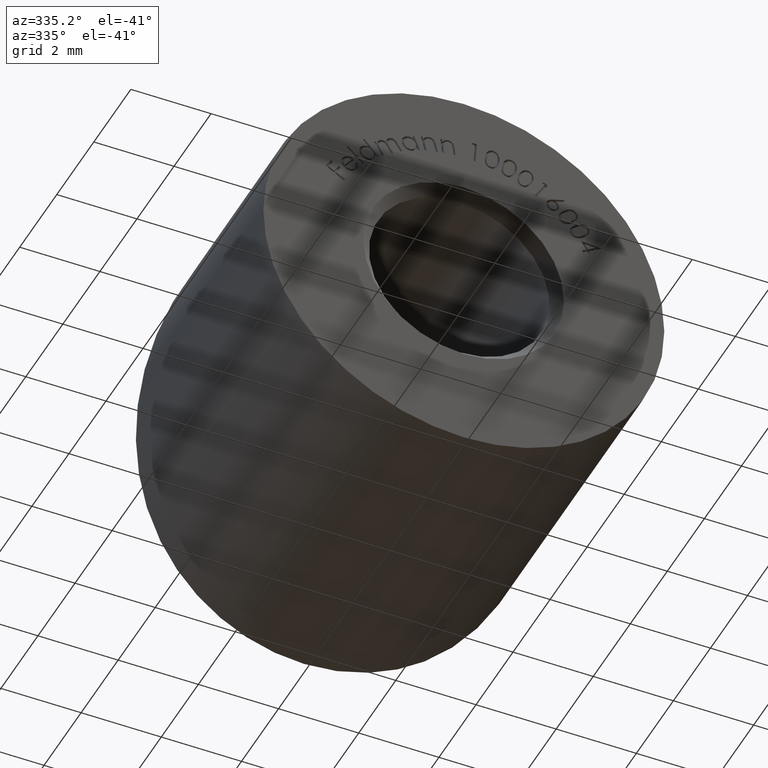
[diagram: clean part render]
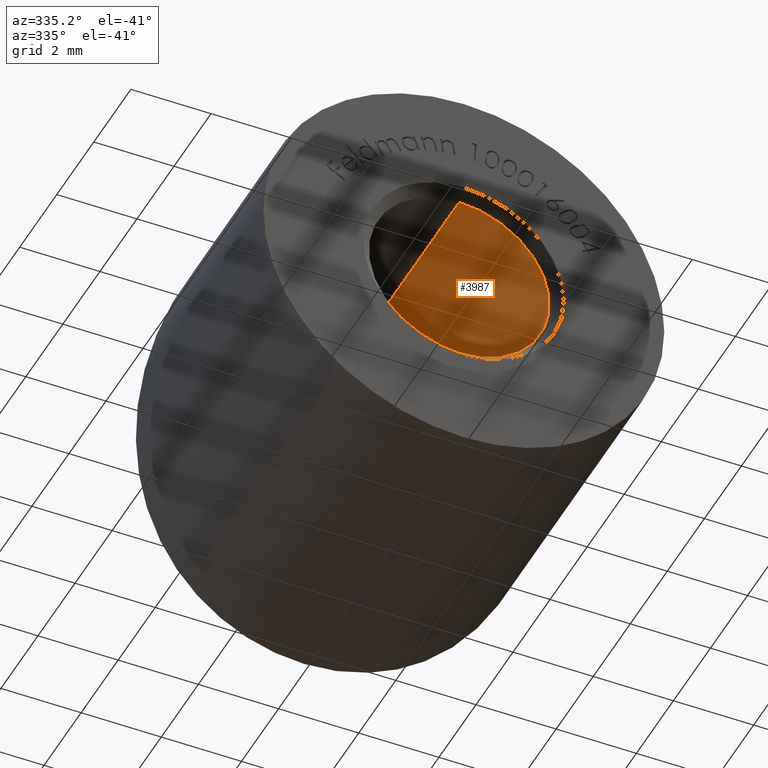
[diagram: same view with one face highlighted and labeled with its STEP entity id]
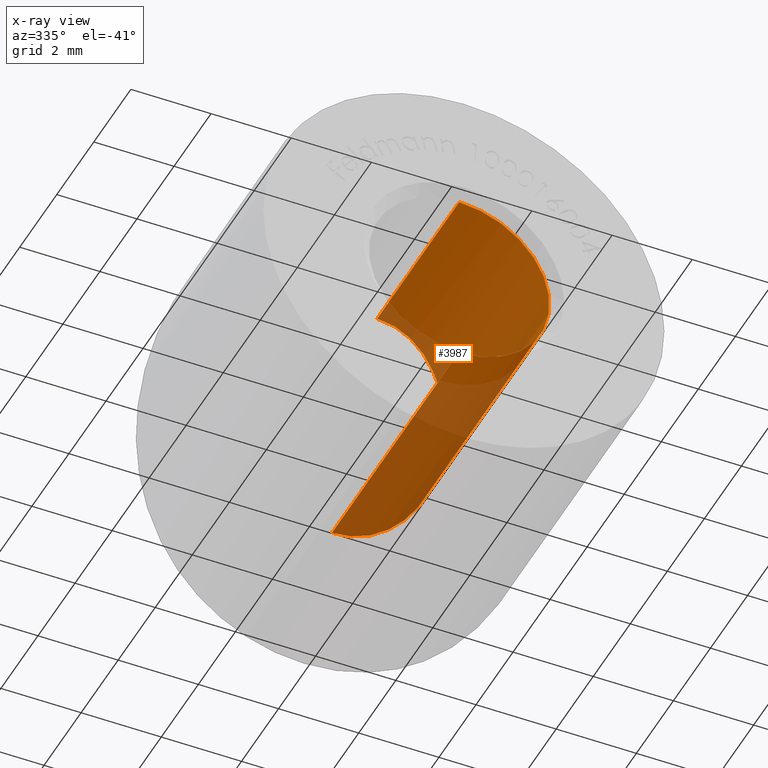
[diagram: x-ray of the same camera — body ghosted, the highlighted face saturated]
A machine part, auxiliary view. The second image highlights one B-rep face of the part: STEP entity #3987.
The next image is the same camera in x-ray: the body ghosted, the highlighted face saturated — about 39% of this face is hidden behind the body in this view.
In plain terms, the highlighted cylindrical surface (partial cylindrical patch) has radius 2.25 mm, axis along (-0, -1, -0).
Its self-contained STEP definition (entity closure, byte-faithful):
#43 = CARTESIAN_POINT ( 'NONE',  ( 1.530730786723420800, 5.063914313705950600, 1.655352444410929100 ) ) ;
#54 = VERTEX_POINT ( 'NONE', #4342 ) ;
#898 = ORIENTED_EDGE ( 'NONE', *, *, #6573, .F. ) ;
#1083 = VECTOR ( 'NONE', #10592, 1000.000000000000000 ) ;
#1145 = CARTESIAN_POINT ( 'NONE',  ( 1.451663471243327600, 6.902826626032707600, -1.744731473559303400 ) ) ;
#1392 = VERTEX_POINT ( 'NONE', #1548 ) ;
#1548 = CARTESIAN_POINT ( 'NONE',  ( 2.755400090286027300E-016, 4.678349675813525000, 2.250000000000000000 ) ) ;
#1598 = VERTEX_POINT ( 'NONE', #5825 ) ;
#1703 = CARTESIAN_POINT ( 'NONE',  ( 0.0000000000000000000, 9.048178118933464000, 0.0000000000000000000 ) ) ;
#1798 = CARTESIAN_POINT ( 'NONE',  ( 0.0000000000000000000, 7.121650324186497000, -2.250000000000000000 ) ) ;
#2014 = CARTESIAN_POINT ( 'NONE',  ( 2.755455298081544300E-016, 9.048178118933464000, 2.250000000000000000 ) ) ;
#2035 = CARTESIAN_POINT ( 'NONE',  ( 2.242001565224755600, 6.163096895265291600, -0.2354402480858955900 ) ) ;
#2172 = CARTESIAN_POINT ( 'NONE',  ( 2.252234718324983100, 6.089109051784075400, -0.09685890814524249200 ) ) ;
#2371 = AXIS2_PLACEMENT_3D ( 'NONE', #1703, #5767, #4623 ) ;
#2430 = EDGE_CURVE ( 'NONE', #1598, #54, #11116, .T. ) ;
#2536 = DIRECTION ( 'NONE',  ( 0.0000000000000000000, 0.0000000000000000000, 1.000000000000000000 ) ) ;
#2617 = VECTOR ( 'NONE', #12446, 1000.000000000000000 ) ;
#3124 = CARTESIAN_POINT ( 'NONE',  ( 1.754928917688501000, 6.751323018545523500, -1.415963693391651300 ) ) ;
#3374 = EDGE_CURVE ( 'NONE', #12751, #1598, #8231, .T. ) ;
#3801 = CARTESIAN_POINT ( 'NONE',  ( 0.0000000000000000000, 7.121650324186497000, -2.250000000000000000 ) ) ;
#3987 = ADVANCED_FACE ( 'NONE', ( #7760 ), #4744, .F. ) ;
#4059 = CARTESIAN_POINT ( 'NONE',  ( 0.3155859234384074700, 7.114603805913512600, -2.233260152988592900 ) ) ;
#4102 = CARTESIAN_POINT ( 'NONE',  ( 0.6220479522852695500, 7.086868629149894800, -2.167971801259602800 ) ) ;
#4146 = CARTESIAN_POINT ( 'NONE',  ( 1.829144983235277700, 5.260425982982458700, 1.341656609144043600 ) ) ;
#4195 = CARTESIAN_POINT ( 'NONE',  ( 1.996906518866765200, 6.575552304438658300, -1.046961950532518100 ) ) ;
#4342 = CARTESIAN_POINT ( 'NONE',  ( 2.755455298081544300E-016, 0.2499999999999950000, 2.250000000000000000 ) ) ;
#4623 = DIRECTION ( 'NONE',  ( 0.0000000000000000000, 0.0000000000000000000, -1.000000000000000000 ) ) ;
#4744 = CYLINDRICAL_SURFACE ( 'NONE', #2371, 2.250000000000000000 ) ;
#5128 = CARTESIAN_POINT ( 'NONE',  ( 2.755400090286027300E-016, 4.678349675813525000, 2.250000000000000000 ) ) ;
#5767 = DIRECTION ( 'NONE',  ( -0.0000000000000000000, -1.000000000000000000, -0.0000000000000000000 ) ) ;
#5825 = CARTESIAN_POINT ( 'NONE',  ( 0.0000000000000000000, 0.2499999999999950000, -2.250000000000000000 ) ) ;
#5863 = B_SPLINE_CURVE_WITH_KNOTS ( 'NONE', 3,
 ( #3801, #13000, #4059, #4102, #7222, #9237, #1145, #3124, #8116, #4195, #12370, #8246, #6250, #2035, #2172, #12228, #13200, #7092, #4146, #43, #8157, #9193, #11162, #7273, #11248, #8296, #11296, #5128 ),
 .UNSPECIFIED., .F., .F.,
 ( 4, 2, 2, 2, 2, 2, 2, 2, 2, 2, 2, 2, 2, 4 ),
 ( 0.0000000000000000000, 0.0004711000582644451500, 0.0009422001165288903000, 0.001884400233057781500, 0.002355500291322227100, 0.002826600349586672800, 0.003297700407851118500, 0.003768800466115564600, 0.004711000582644454300, 0.005653200699173344800, 0.006124300757437790500, 0.006595400815702235300, 0.007066500873966680100, 0.007537600932231125800 ),
 .UNSPECIFIED. ) ;
#6250 = CARTESIAN_POINT ( 'NONE',  ( 2.195678798304772500, 6.307100890617409300, -0.5108793825981936500 ) ) ;
#6573 = EDGE_CURVE ( 'NONE', #12751, #1392, #5863, .T. ) ;
#7092 = CARTESIAN_POINT ( 'NONE',  ( 1.978757368600619500, 5.404122975890368600, 1.106694589313736500 ) ) ;
#7205 = AXIS2_PLACEMENT_3D ( 'NONE', #8634, #10571, #2536 ) ;
#7222 = CARTESIAN_POINT ( 'NONE',  ( 0.7735842560346954900, 7.065784624632603300, -2.118512831846604900 ) ) ;
#7273 = CARTESIAN_POINT ( 'NONE',  ( 0.7677537430946986800, 4.763976297962370800, 2.120471403295018000 ) ) ;
#7760 = FACE_OUTER_BOUND ( 'NONE', #7883, .T. ) ;
#7883 = EDGE_LOOP ( 'NONE', ( #11230, #898, #9859, #8308 ) ) ;
#8116 = CARTESIAN_POINT ( 'NONE',  ( 1.845058726310910600, 6.695028230409265600, -1.295964223047611800 ) ) ;
#8157 = CARTESIAN_POINT ( 'NONE',  ( 1.420051834103958100, 5.002817761865566500, 1.751470823753793700 ) ) ;
#8218 = EDGE_CURVE ( 'NONE', #1392, #54, #9643, .T. ) ;
#8231 = LINE ( 'NONE', #11574, #1083 ) ;
#8246 = CARTESIAN_POINT ( 'NONE',  ( 2.159188592558108200, 6.377638178930412800, -0.6487870193724797300 ) ) ;
#8296 = CARTESIAN_POINT ( 'NONE',  ( 0.3172753161369369900, 4.689682549578868100, 2.232955936073446800 ) ) ;
#8308 = ORIENTED_EDGE ( 'NONE', *, *, #2430, .T. ) ;
#8634 = CARTESIAN_POINT ( 'NONE',  ( 0.0000000000000000000, 0.2499999999999950000, 0.0000000000000000000 ) ) ;
#9193 = CARTESIAN_POINT ( 'NONE',  ( 1.179584366087567300, 4.893604216598686400, 1.921660214836274700 ) ) ;
#9237 = CARTESIAN_POINT ( 'NONE',  ( 1.198416735788125200, 6.983969044038545300, -1.929355904678079900 ) ) ;
#9643 = LINE ( 'NONE', #2014, #2617 ) ;
#9859 = ORIENTED_EDGE ( 'NONE', *, *, #3374, .T. ) ;
#10571 = DIRECTION ( 'NONE',  ( 0.0000000000000000000, -1.000000000000000000, 0.0000000000000000000 ) ) ;
#10592 = DIRECTION ( 'NONE',  ( -0.0000000000000000000, -1.000000000000000000, -0.0000000000000000000 ) ) ;
#11116 = CIRCLE ( 'NONE', #7205, 2.250000000000000000 ) ;
#11162 = CARTESIAN_POINT ( 'NONE',  ( 1.047371904924305100, 4.844534001889889500, 1.997212275899358500 ) ) ;
#11230 = ORIENTED_EDGE ( 'NONE', *, *, #8218, .F. ) ;
#11248 = CARTESIAN_POINT ( 'NONE',  ( 0.6219016331375171200, 4.732659447890177300, 2.167947000592110700 ) ) ;
#11296 = CARTESIAN_POINT ( 'NONE',  ( 0.1571736855513790300, 4.678349675813522300, 2.250000000000000000 ) ) ;
#11574 = CARTESIAN_POINT ( 'NONE',  ( 0.0000000000000000000, 9.048178118933464000, -2.250000000000000000 ) ) ;
#12228 = CARTESIAN_POINT ( 'NONE',  ( 2.244323234714471900, 5.861063481721819500, 0.3213793960147090000 ) ) ;
#12370 = CARTESIAN_POINT ( 'NONE',  ( 2.059477921329849500, 6.512122493492913800, -0.9173716075256414000 ) ) ;
#12446 = DIRECTION ( 'NONE',  ( -0.0000000000000000000, -1.000000000000000000, -0.0000000000000000000 ) ) ;
#12751 = VERTEX_POINT ( 'NONE', #1798 ) ;
#13000 = CARTESIAN_POINT ( 'NONE',  ( 0.1593630066702979900, 7.121650324186495200, -2.249999999999999600 ) ) ;
#13200 = CARTESIAN_POINT ( 'NONE',  ( 2.189051265149097000, 5.708205707130567000, 0.5901764112167530200 ) ) ;